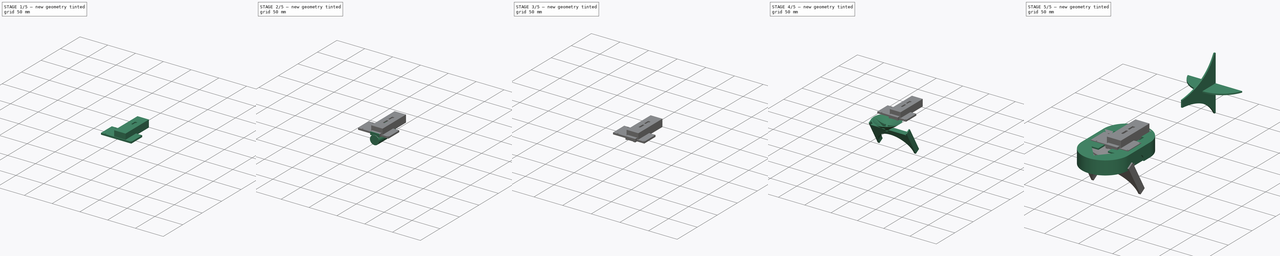
[diagram: build sequence overview — one tinted view per stage of 5, left to right]
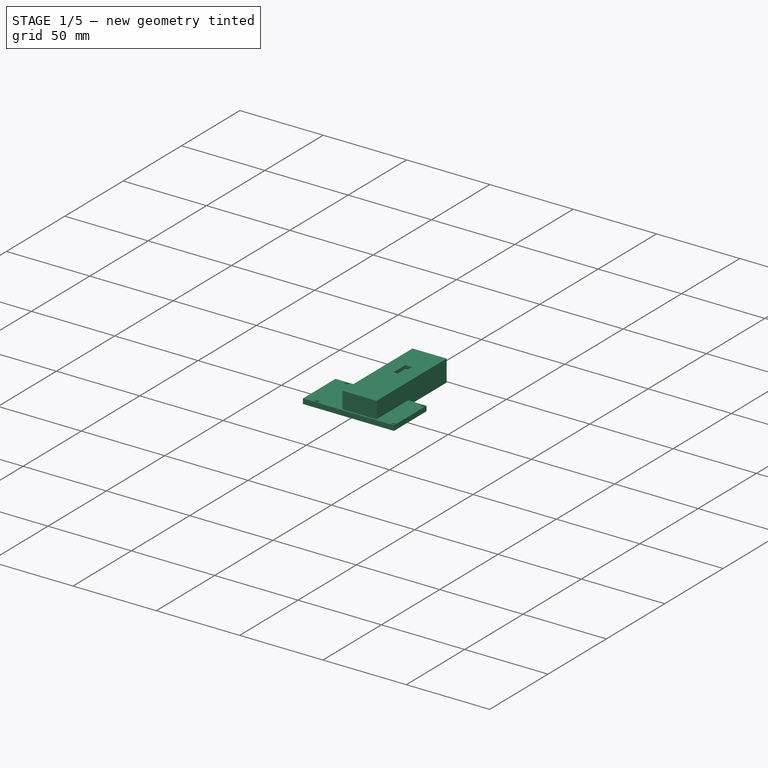
[diagram: stage 1 of 5 — iso view after this stage's code; geometry added in this stage tinted green]
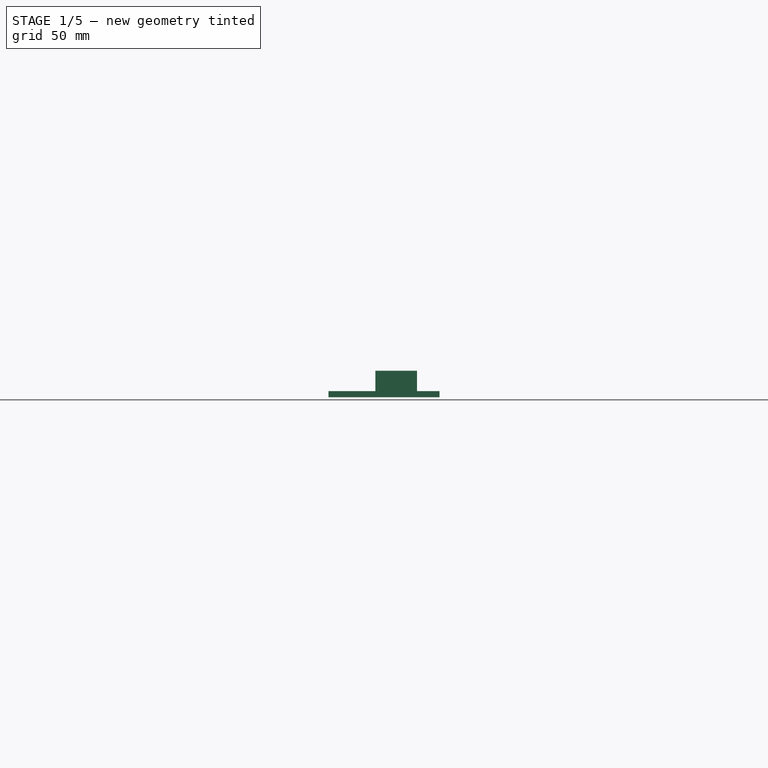
[diagram: stage 1 of 5 — front view after this stage's code; geometry added in this stage tinted green]
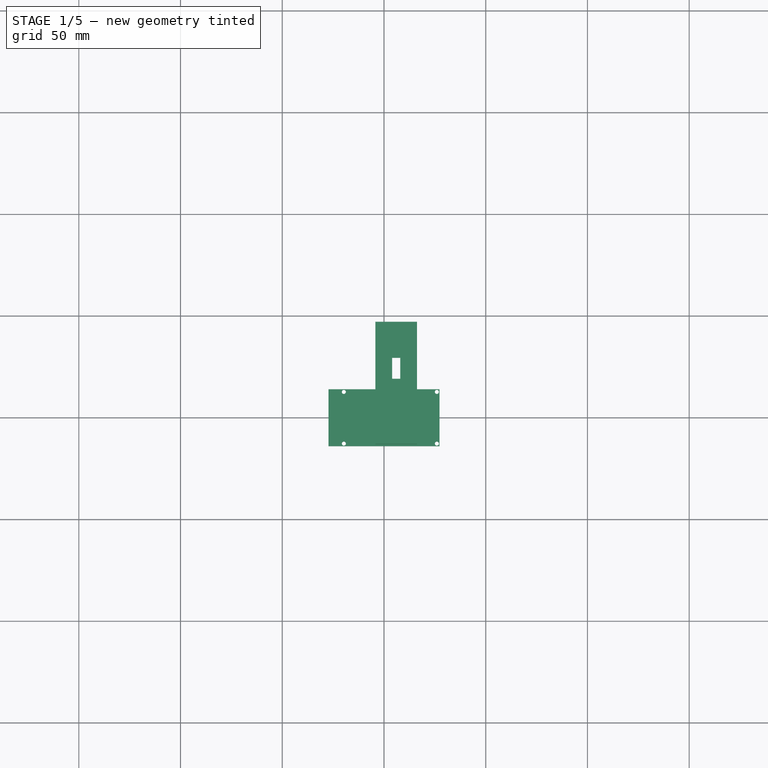
[diagram: stage 1 of 5 — top view after this stage's code; geometry added in this stage tinted green]
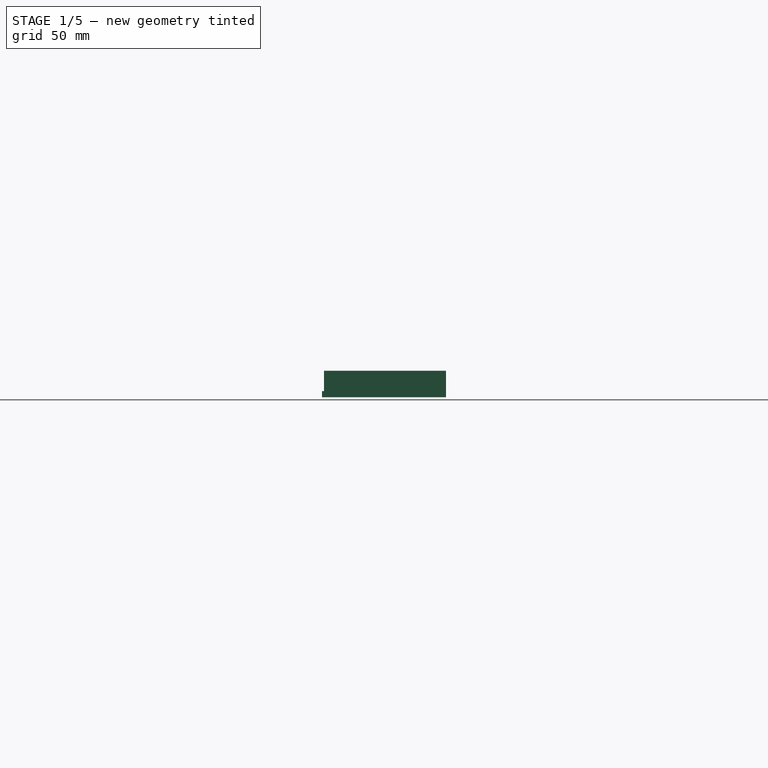
[diagram: stage 1 of 5 — right view after this stage's code; geometry added in this stage tinted green]
FCSTD DOCUMENT  (FreeCAD 0.18R16146 (Git))
Label: 06_SmartCityTrafficLight
License: All rights reserved
LicenseURL: http://en.wikipedia.org/wiki/All_rights_reserved
objects: Part::Box×29, Part::Cut×20, Sketcher::SketchObject×14, PartDesign::Body×13, PartDesign::Pad×12, Part::MultiFuse×11, Part::Cylinder×7, Part::Chamfer×3, PartDesign::Revolution×2, PartDesign::FeatureBase×1, Image::ImagePlane×1, Part::Part2DObjectPython×1, Part::Feature×1, App::DocumentObjectGroup×1
note: 128 computed .brp shape members not serialized (recipe doc carries the construction recipe); baked Part::Feature solids carry a one-line shape summary decoded from their .brp

FEATURE [Part::Box] Box017  label="Cube017"
  AttacherType = Attacher::AttachEngine3D
  Height = 11
  Length = 16.5
  Placement = pos=(-2.25,-11,0) rot=(0,0,1;0rad)
  Width = 28
FEATURE [Part::Box] Box018  label="Cube018"
  AttacherType = Attacher::AttachEngine3D
  Height = 13
  Length = 20.5
  Placement = pos=(-4.25,-13,0) rot=(0,0,1;0rad)
  Width = 32
FEATURE [Part::Box] Box020  label="Cube020"
  AttacherType = Attacher::AttachEngine3D
  Height = 11
  Length = 16.5
  Placement = pos=(-2.25,-11,0) rot=(0,0,1;0rad)
  Width = 56
FEATURE [Part::Box] Box021  label="Cube021"
  AttacherType = Attacher::AttachEngine3D
  Height = 4
  Length = 12.5
  Placement = pos=(-0.25,-9,7.5) rot=(0,0,1;0rad)
  Width = 52
FEATURE [Part::Box] Box022  label="Cube022"
  AttacherType = Attacher::AttachEngine3D
  Height = 8
  Length = 5.5
  Placement = pos=(3.25,-9,-0.5) rot=(0,0,1;0rad)
  Width = 52
FEATURE [Sketcher::SketchObject] Sketch013
  MapMode = 5
  Support = -> [XY_Plane013]
  sketch-geometry (3):
    g0: LineSegment StartX=0 StartY=20.7773 StartZ=0 EndX=-2.18082 EndY=17 EndZ=0
    g1: LineSegment StartX=-2.18082 StartY=17 StartZ=0 EndX=2.18082 EndY=17 EndZ=0
    g2: LineSegment StartX=2.18082 StartY=17 StartZ=0 EndX=0 EndY=20.7773 EndZ=0
  constraints (6):
    c: Coincident(g0,g1)
    c: Coincident(g1,g2)
    c: Coincident(g2,g0)
    c: Equal(g2,g1)
    c: Equal(g0,g1)
    c: Symmetric(g1,g0,g-2)
FEATURE [PartDesign::Pad] Pad010
  Length = 1.1
  Length2 = 100
  Profile = -> Sketch013
  Type = 0
FEATURE [Part::Chamfer] Chamfer002
  Base = -> Pad010
  Edges = 3 edges r=1: [Edge3,Edge6,Edge8]
  Placement = pos=(11.5,12.5,0.9) rot=(1,0,0;3.14159rad)
FEATURE [Part::Box] Box023  label="Cube023"
  AttacherType = Attacher::AttachEngine3D
  Height = 11
  Length = 16.5
  Placement = pos=(-2.25,-11,0) rot=(0,0,1;0rad)
  Width = 56
FEATURE [Part::Box] Box024  label="Cube024"
  AttacherType = Attacher::AttachEngine3D
  Height = 13
  Length = 20.5
  Placement = pos=(-4.25,-13,0) rot=(0,0,1;0rad)
  Width = 60
FEATURE [Part::Box] Box026  label="Cube026"
  AttacherType = Attacher::AttachEngine3D
  Height = 2
  Length = 3
  Placement = pos=(4.5,-9,11) rot=(0,0,1;0rad)
  Width = 24
FEATURE [Part::MultiFuse] Fusion011
  Shapes = -> [Box026,Box017]
FEATURE [Part::Box] Box027  label="Cube027"
  AttacherType = Attacher::AttachEngine3D
  Height = 2
  Length = 4
  Placement = pos=(4,4.25,11) rot=(0,0,1;0rad)
  Width = 25
FEATURE [Part::MultiFuse] Fusion012
  Shapes = -> [Box021,Box022,Chamfer002]
FEATURE [Part::Cut] Cut023  label="RaspLightConnInner"
  Base = -> Box020
  Tool = -> Fusion012
FEATURE [Part::MultiFuse] Fusion013
  Shapes = -> [Box027,Box023]
FEATURE [Part::Cut] Cut024  label="RaspLightConnOutter"
  Base = -> Box024
  Tool = -> Fusion013
FEATURE [Image::ImagePlane] ImagePlane
  XSize = 54.6
  YSize = 27.49
FEATURE [Sketcher::SketchObject] Sketch014
  MapMode = 5
  Support = -> [XY_Plane014]
  sketch-geometry (8):
    g0: Circle CenterX=25.996 CenterY=12.7 CenterZ=0 NormalX=0 NormalY=0 NormalZ=1 AngleXU=0 Radius=1
    g1: Circle CenterX=-19.724 CenterY=12.7 CenterZ=0 NormalX=0 NormalY=0 NormalZ=1 AngleXU=0 Radius=1
    g2: Circle CenterX=25.996 CenterY=-12.7 CenterZ=0 NormalX=0 NormalY=0 NormalZ=1 AngleXU=0 Radius=1
    g3: Circle CenterX=-19.724 CenterY=-12.7 CenterZ=0 NormalX=0 NormalY=0 NormalZ=1 AngleXU=0 Radius=1
    g4: LineSegment StartX=-27.3 StartY=13.97 StartZ=0 EndX=27.3 EndY=13.97 EndZ=0
    g5: LineSegment StartX=27.3 StartY=13.97 StartZ=0 EndX=27.3 EndY=-13.97 EndZ=0
    g6: LineSegment StartX=27.3 StartY=-13.97 StartZ=0 EndX=-27.3 EndY=-13.97 EndZ=0
    g7: LineSegment StartX=-27.3 StartY=-13.97 StartZ=0 EndX=-27.3 EndY=13.97 EndZ=0
  constraints (17):
    c: Radius(g0) = 1
    c: DistanceY(g0) = 12.7
    c: Equal(g0,g1) = 1
    c: DistanceY(g1) = 12.7
    c: DistanceX(g1,g0) = 45.72
    c: Radius(g2) = 1
    c: Equal(g2,g3) = 1
    c: Coincident(g4,g5)
    c: Coincident(g5,g6)
    c: Coincident(g6,g7)
    c: Coincident(g7,g4)
    c: Horizontal(g6)
    c: Vertical(g5)
    c: DistanceX(g4,g4) = 54.6
    c: DistanceY(g7,g7) = 27.94
    c: Symmetric(g6,g4,g-1)
    c: Symmetric(g4,g4,g-2)
FEATURE [PartDesign::Pad] Pad011
  Length = 3
  Length2 = 100
  Profile = -> Sketch014
  Type = 0
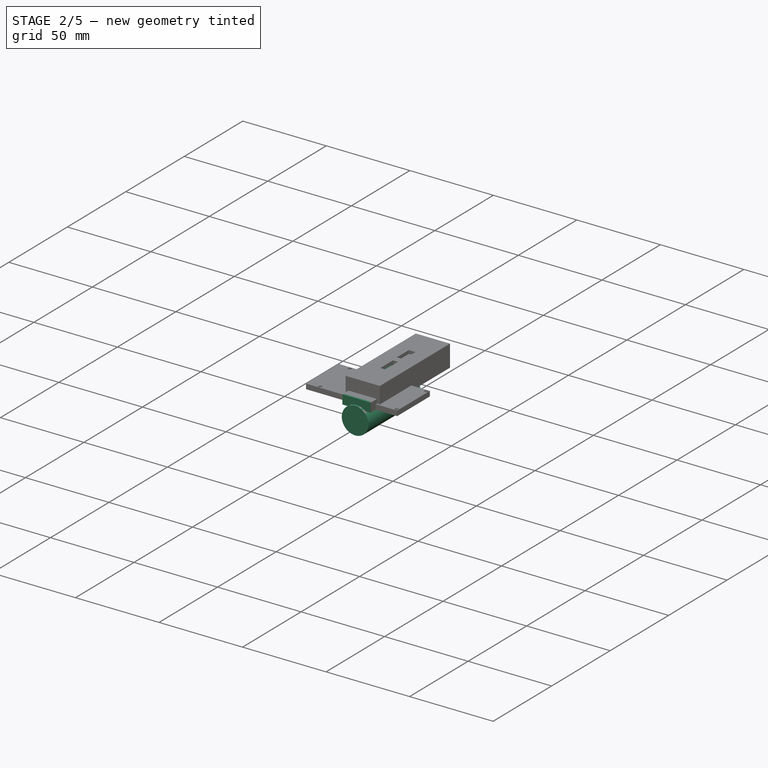
[diagram: stage 2 of 5 — iso view after this stage's code; geometry added in this stage tinted green]
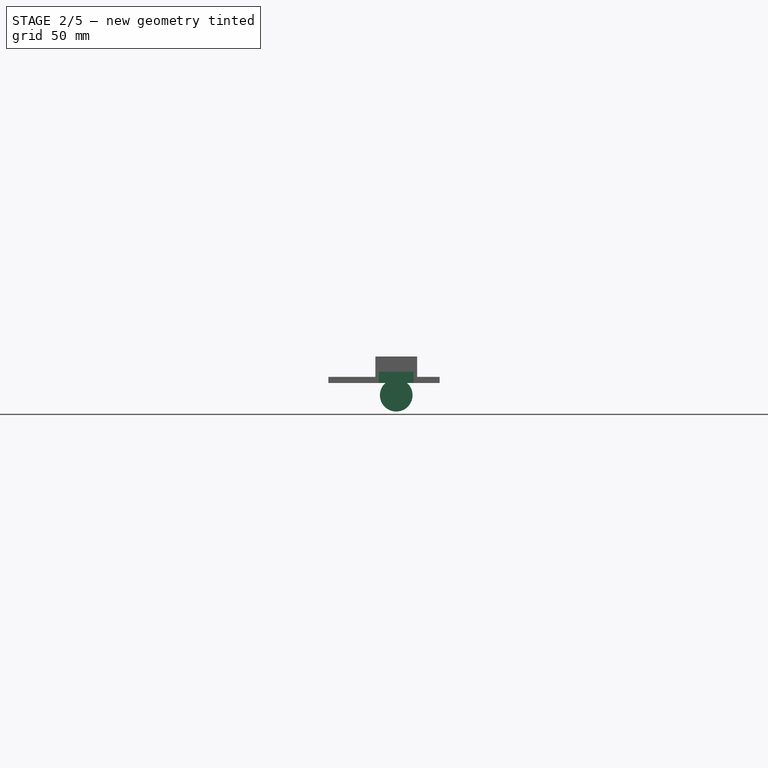
[diagram: stage 2 of 5 — front view after this stage's code; geometry added in this stage tinted green]
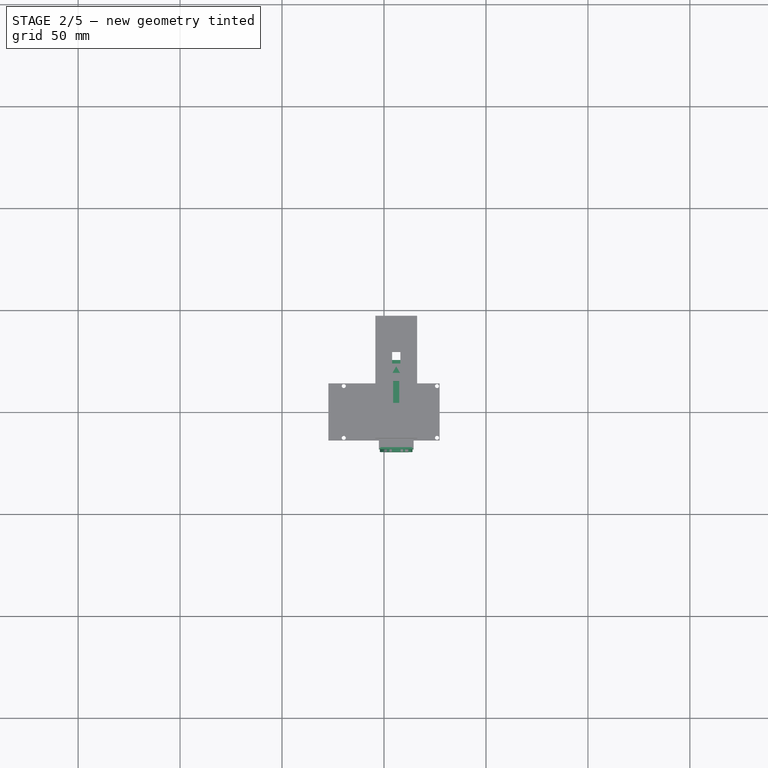
[diagram: stage 2 of 5 — top view after this stage's code; geometry added in this stage tinted green]
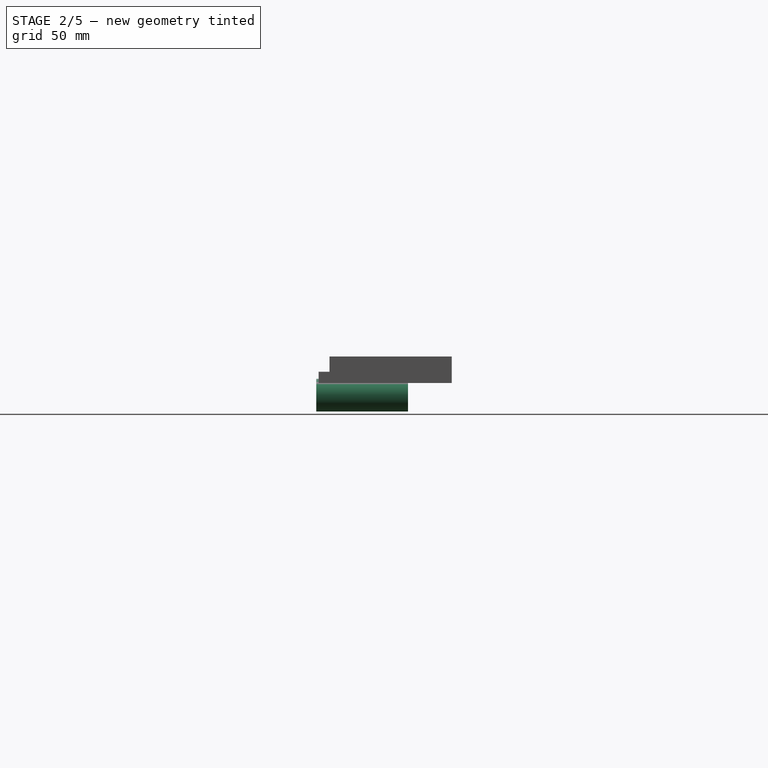
[diagram: stage 2 of 5 — right view after this stage's code; geometry added in this stage tinted green]
FEATURE [Part::Box] Box008  label="Cube008"
  AttacherType = Attacher::AttachEngine3D
  Height = 2
  Length = 15
  Placement = pos=(-1.5,-17.3,3.5) rot=(0,0,1;0rad)
  Width = 40
FEATURE [Part::Cylinder] Cylinder005
  Angle = 360
  AttacherType = Attacher::AttachEngine3D
  Height = 45
  Placement = pos=(6,-19.5,-6) rot=(-1,0,0;1.5708rad)
  Radius = 8
FEATURE [Part::Box] Box009  label="Cube009"
  AttacherType = Attacher::AttachEngine3D
  Height = 5.5
  Length = 17
  Placement = pos=(-2.5,-18.3,0) rot=(0,0,1;0rad)
  Width = 42
FEATURE [Part::Box] Box010  label="Cube010"
  AttacherType = Attacher::AttachEngine3D
  Height = 5.5
  Length = 15
  Placement = pos=(-1.5,-17.3,0) rot=(0,0,1;0rad)
  Width = 40
FEATURE [Part::Box] Box011  label="Cube011"
  AttacherType = Attacher::AttachEngine3D
  Height = 10
  Length = 5.5
  Placement = pos=(3.25,-9,0) rot=(0,0,1;0rad)
  Width = 24
FEATURE [Part::Cut] Cut011
  Base = -> Box009
  Tool = -> Box010
FEATURE [Sketcher::SketchObject] Sketch010
  MapMode = 5
  Support = -> [XY_Plane010]
  sketch-geometry (3):
    g0: LineSegment StartX=0 StartY=23.7963 StartZ=0 EndX=-3.92384 EndY=17 EndZ=0
    g1: LineSegment StartX=-3.92384 StartY=17 StartZ=0 EndX=3.92384 EndY=17 EndZ=0
    g2: LineSegment StartX=3.92384 StartY=17 StartZ=0 EndX=0 EndY=23.7963 EndZ=0
  constraints (6):
    c: Coincident(g0,g1)
    c: Coincident(g1,g2)
    c: Coincident(g2,g0)
    c: Equal(g2,g1)
    c: Equal(g0,g1)
    c: Symmetric(g1,g0,g-2)
FEATURE [PartDesign::Pad] Pad007
  Length = 1.1
  Length2 = 100
  Profile = -> Sketch010
  Type = 0
FEATURE [PartDesign::Body] Body011
  Group = -> [Sketch011,Pad008]
  Origin = -> Origin011
  Placement = pos=(6,-2,4) rot=(0,0,1;0rad)
  Tip = -> Pad008
FEATURE [Part::Chamfer] Chamfer
  Base = -> Pad007
  Edges = 3 edges r=1: [Edge3,Edge6,Edge8]
  Placement = pos=(6,-1.5,4.4) rot=(0,0,1;0rad)
FEATURE [Part::MultiFuse] Fusion005
  Shapes = -> [Cut011,Box008]
FEATURE [Part::Box] Box014  label="Cube014"
  AttacherType = Attacher::AttachEngine3D
  Height = 8
  Length = 5.5
  Placement = pos=(3.25,-9,-0.5) rot=(0,0,1;0rad)
  Width = 24
FEATURE [Part::Box] Box015  label="Cube015"
  AttacherType = Attacher::AttachEngine3D
  Height = 11
  Length = 16.5
  Placement = pos=(-2.25,-11,0) rot=(0,0,1;0rad)
  Width = 28
FEATURE [Part::Box] Box016  label="Cube016"
  AttacherType = Attacher::AttachEngine3D
  Height = 4
  Length = 12.5
  Placement = pos=(-0.25,-9,7.5) rot=(0,0,1;0rad)
  Width = 24
FEATURE [Sketcher::SketchObject] Sketch012
  MapMode = 5
  Support = -> [XY_Plane012]
  sketch-geometry (3):
    g0: LineSegment StartX=0 StartY=20.7773 StartZ=0 EndX=-2.18082 EndY=17 EndZ=0
    g1: LineSegment StartX=-2.18082 StartY=17 StartZ=0 EndX=2.18082 EndY=17 EndZ=0
    g2: LineSegment StartX=2.18082 StartY=17 StartZ=0 EndX=0 EndY=20.7773 EndZ=0
  constraints (6):
    c: Coincident(g0,g1)
    c: Coincident(g1,g2)
    c: Coincident(g2,g0)
    c: Equal(g2,g1)
    c: Equal(g0,g1)
    c: Symmetric(g1,g0,g-2)
FEATURE [PartDesign::Pad] Pad009
  Length = 1.1
  Length2 = 100
  Profile = -> Sketch012
  Type = 0
FEATURE [Part::Chamfer] Chamfer001
  Base = -> Pad009
  Edges = 3 edges r=1: [Edge3,Edge6,Edge8]
  Placement = pos=(0.5,-4.5,0.9) rot=(0,1,0;3.14159rad)
FEATURE [Part::MultiFuse] Fusion010
  Shapes = -> [Chamfer001,Box014,Box016]
FEATURE [Part::Cut] Cut021  label="TrackLightConnInner"
  Base = -> Box015
  Tool = -> Fusion010
FEATURE [Part::Cut] Cut022  label="TrackLightConnOuter"
  Base = -> Box018
  Tool = -> Fusion011
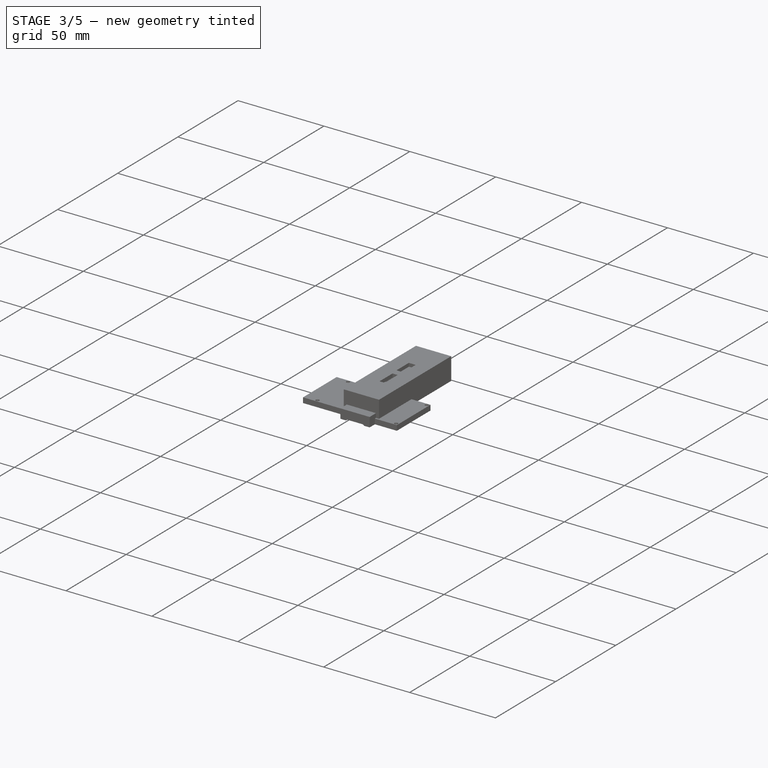
[diagram: stage 3 of 5 — iso view after this stage's code; geometry added in this stage tinted green]
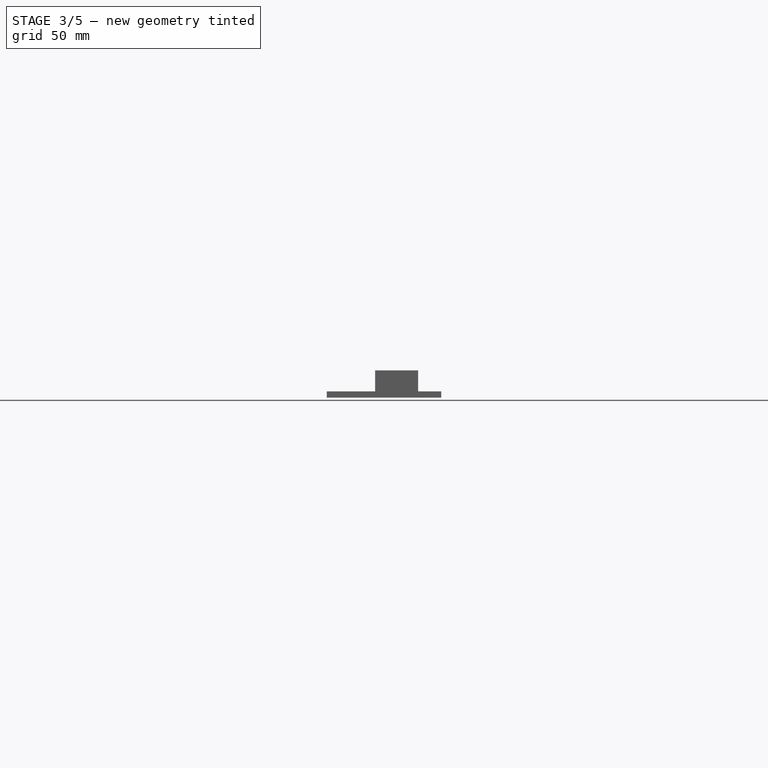
[diagram: stage 3 of 5 — front view after this stage's code; geometry added in this stage tinted green]
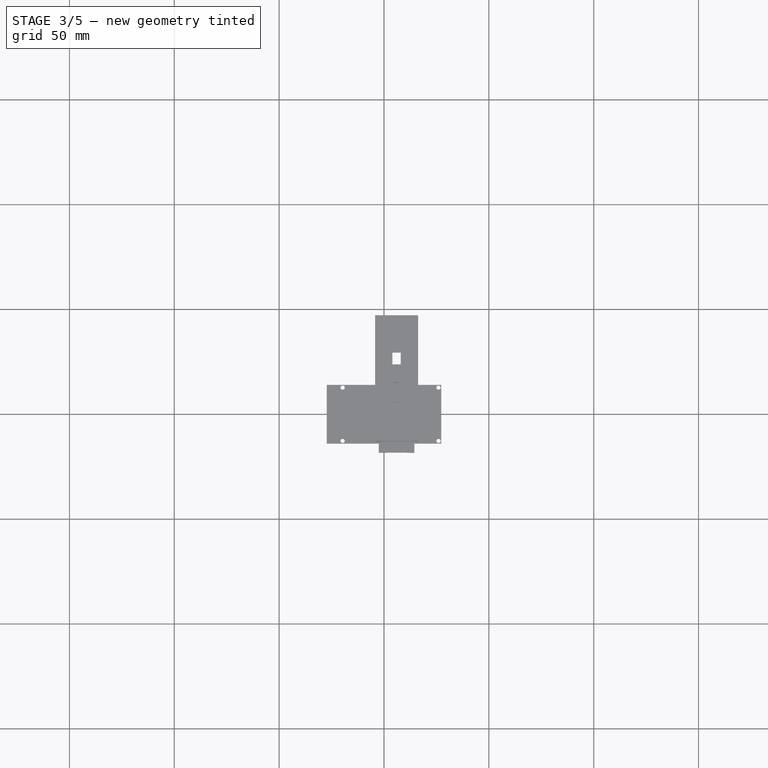
[diagram: stage 3 of 5 — top view after this stage's code; geometry added in this stage tinted green]
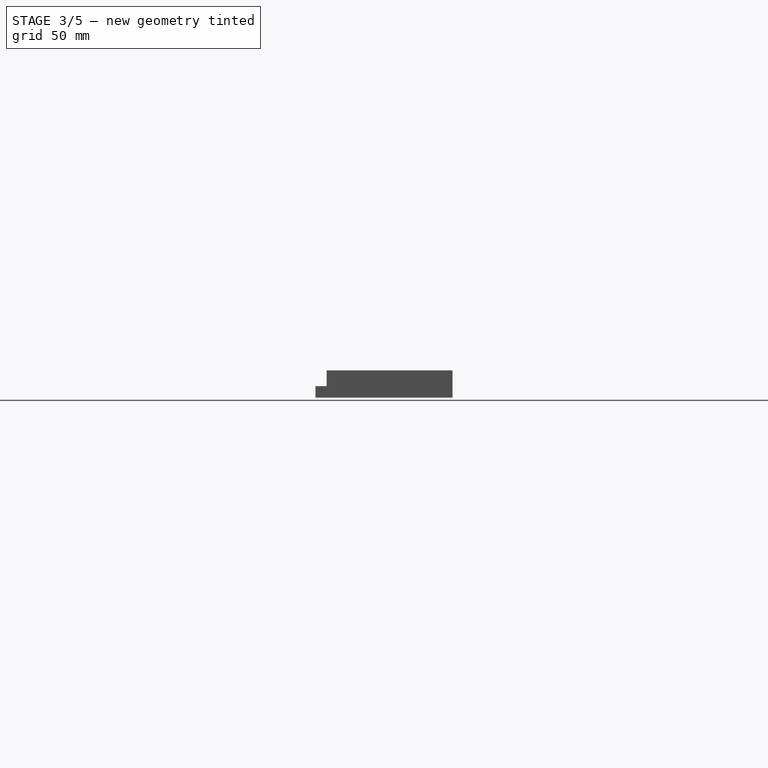
[diagram: stage 3 of 5 — right view after this stage's code; geometry added in this stage tinted green]
FEATURE [PartDesign::Body] Body009  label="LedSupportB"
  BaseFeature = -> Cut003
  Group = -> [Clone]
  Origin = -> Origin009
  Placement = pos=(0,50,0) rot=(0,0,1;0rad)
  Tip = -> Clone
FEATURE [Part::Box] Box002  label="Cube002"
  AttacherType = Attacher::AttachEngine3D
  Height = 10
  Length = 12.5
  Placement = pos=(-0.25,0.1,0) rot=(0,0,1;0rad)
  Width = 5.6
FEATURE [Part::Box] Box003  label="Cube003"
  AttacherType = Attacher::AttachEngine3D
  Height = 2
  Length = 15
  Placement = pos=(-1.5,-17.3,0) rot=(0,0,1;0rad)
  Width = 40
FEATURE [Part::Box] Box004  label="Cube004"
  AttacherType = Attacher::AttachEngine3D
  Height = 2
  Length = 12.4
  Placement = pos=(-0.2,1.5,0) rot=(0,0,1;0rad)
  Width = 7
FEATURE [Part::Box] Box005  label="Cube005"
  AttacherType = Attacher::AttachEngine3D
  Height = 2
  Length = 15
  Placement = pos=(-1.5,-17.3,0) rot=(0,0,1;0rad)
  Width = 40
FEATURE [Part::Cut] Cut007
  Base = -> Box005
  Placement = pos=(0,0,3.5) rot=(0,0,1;0rad)
  Tool = -> Box002
FEATURE [Part::Box] Box006  label="Cube006"
  AttacherType = Attacher::AttachEngine3D
  Height = 5.5
  Length = 17
  Placement = pos=(-2.5,-18.3,0) rot=(0,0,1;0rad)
  Width = 42
FEATURE [Part::Box] Box007  label="Cube007"
  AttacherType = Attacher::AttachEngine3D
  Height = 5.5
  Length = 15
  Placement = pos=(-1.5,-17.3,0) rot=(0,0,1;0rad)
  Width = 40
FEATURE [Part::Cut] Cut008
  Base = -> Box006
  Tool = -> Box007
FEATURE [Part::MultiFuse] Fusion003
  Shapes = -> [Cut007,Cut008]
FEATURE [Part::Cylinder] Cylinder004
  Angle = 360
  AttacherType = Attacher::AttachEngine3D
  Height = 45
  Placement = pos=(6,-19.5,-6) rot=(-1,0,0;1.5708rad)
  Radius = 8
FEATURE [Part::Box] Box012  label="Cube012"
  AttacherType = Attacher::AttachEngine3D
  Height = 2
  Length = 15
  Placement = pos=(-1.5,-17.3,0) rot=(0,0,1;0rad)
  Width = 40
FEATURE [Part::Box] Box013  label="Cube013"
  AttacherType = Attacher::AttachEngine3D
  Height = 2
  Length = 9
  Placement = pos=(1.5,-9,0) rot=(0,0,1;0rad)
  Width = 24
FEATURE [Part::Cut] Cut014  label="TrackLightConnBottomCover"
  Base = -> Box012
  Tool = -> Box013
FEATURE [PartDesign::Body] Body010
  Group = -> [Sketch010,Pad007]
  Origin = -> Origin010
  Placement = pos=(6,-2,4) rot=(0,0,1;0rad)
  Tip = -> Pad007
FEATURE [Sketcher::SketchObject] Sketch011
  MapMode = 5
  Support = -> [XY_Plane011]
  sketch-geometry (3):
    g0: LineSegment StartX=0 StartY=23.7963 StartZ=0 EndX=-3.92384 EndY=17 EndZ=0
    g1: LineSegment StartX=-3.92384 StartY=17 StartZ=0 EndX=3.92384 EndY=17 EndZ=0
    g2: LineSegment StartX=3.92384 StartY=17 StartZ=0 EndX=0 EndY=23.7963 EndZ=0
  constraints (6):
    c: Coincident(g0,g1)
    c: Coincident(g1,g2)
    c: Coincident(g2,g0)
    c: Equal(g2,g1)
    c: Equal(g0,g1)
    c: Symmetric(g1,g0,g-2)
FEATURE [PartDesign::Pad] Pad008
  Length = 1.1
  Length2 = 100
  Profile = -> Sketch011
  Type = 0
FEATURE [Part::Cut] Cut015  label="TrafficLightConnTopCover"
  Base = -> Fusion003
  Tool = -> Cylinder004
FEATURE [Part::MultiFuse] Fusion004
  Shapes = -> [Cylinder005,Chamfer,Box011]
FEATURE [Part::Cut] Cut016  label="TrackLightConnTopCover"
  Base = -> Fusion005
  Tool = -> Fusion004
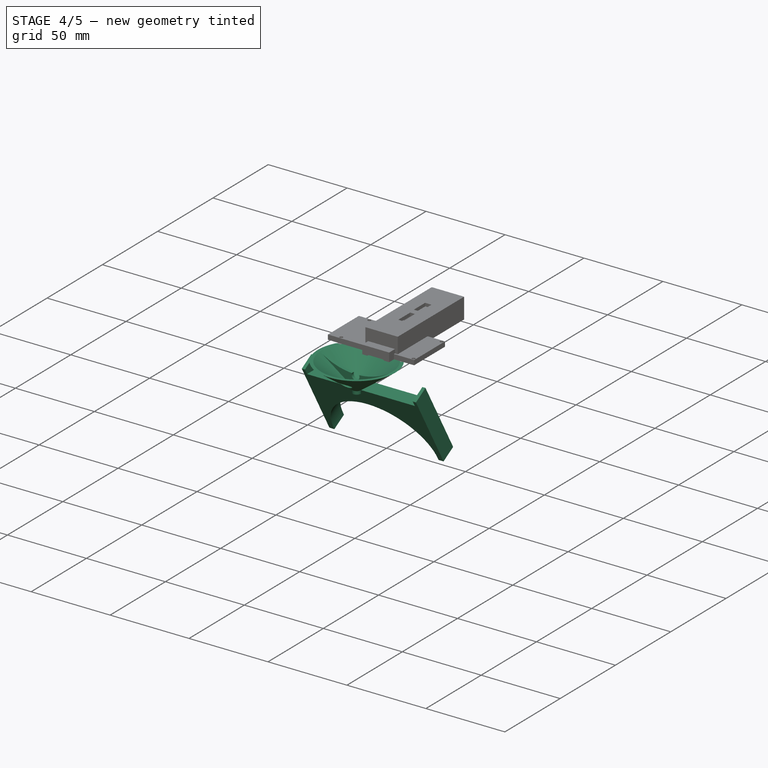
[diagram: stage 4 of 5 — iso view after this stage's code; geometry added in this stage tinted green]
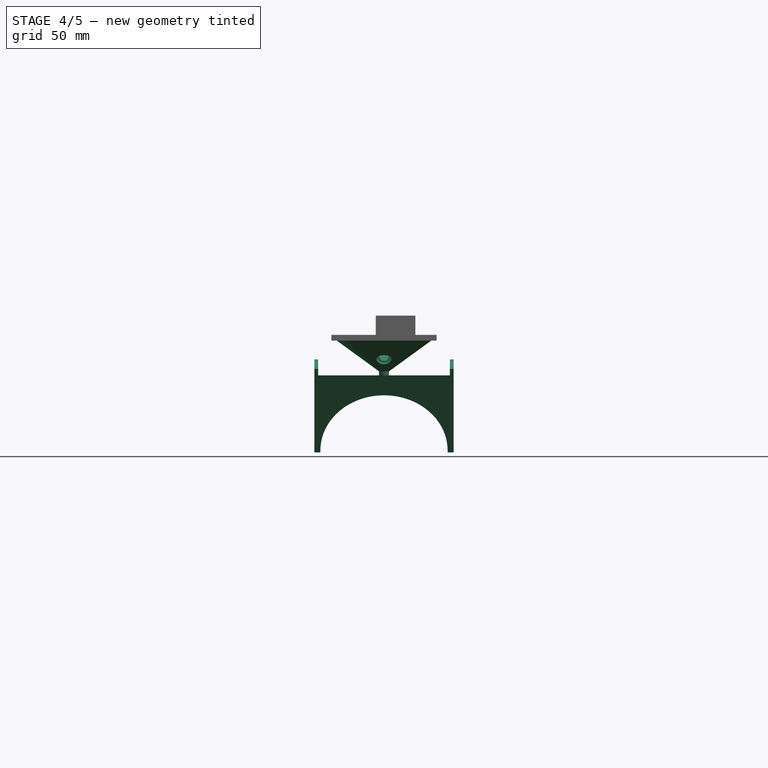
[diagram: stage 4 of 5 — front view after this stage's code; geometry added in this stage tinted green]
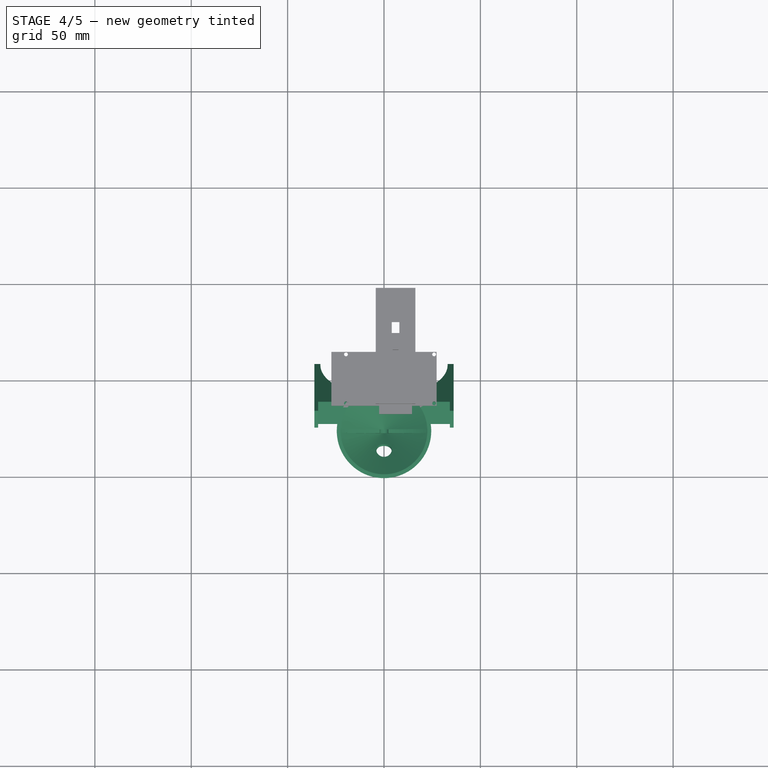
[diagram: stage 4 of 5 — top view after this stage's code; geometry added in this stage tinted green]
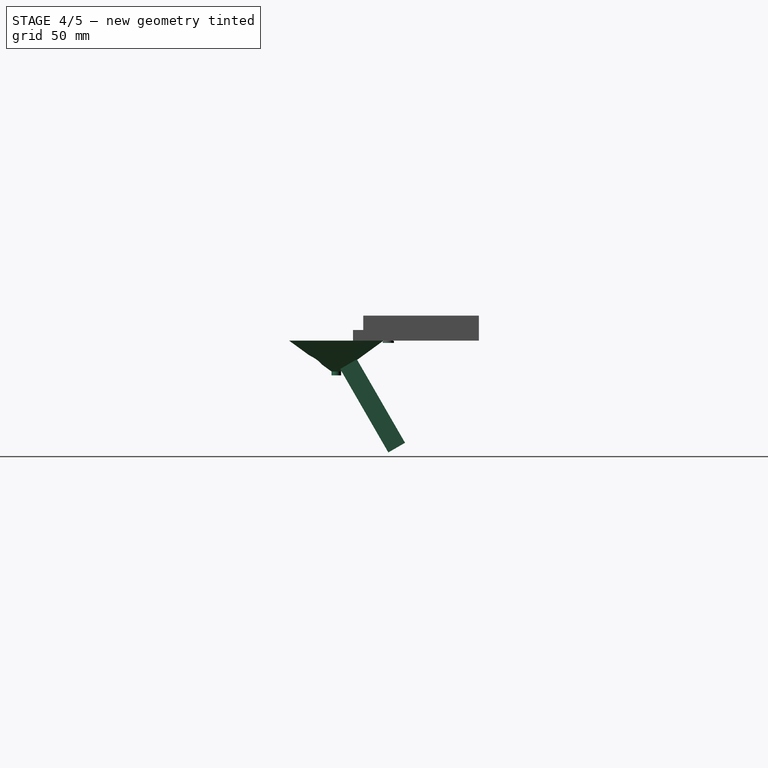
[diagram: stage 4 of 5 — right view after this stage's code; geometry added in this stage tinted green]
FEATURE [Sketcher::SketchObject] Sketch004
  MapMode = 5
  Placement = pos=(0,0,0) rot=(1,0,0;1.5708rad)
  Support = -> [XZ_Plane004]
  sketch-geometry (6):
    g0: ArcOfCircle CenterX=0 CenterY=4.8125 CenterZ=0 NormalX=0 NormalY=0 NormalZ=1 AngleXU=0 Radius=2.7 StartAngle=1.57105 EndAngle=2.77929
    g1: LineSegment StartX=-2.52472 StartY=-0.187498 StartZ=0 EndX=-2.52472 EndY=5.76946 EndZ=0
    g2: LineSegment StartX=-0.000689434 StartY=7.5125 StartZ=0 EndX=0 EndY=-1.1875 EndZ=0
    g3: LineSegment StartX=-2.92472 StartY=-0.187498 StartZ=0 EndX=-2.52472 EndY=-0.187498 EndZ=0
    g4: LineSegment StartX=-2.92472 StartY=-1.1875 StartZ=0 EndX=-2.92472 EndY=-0.187498 EndZ=0
    g5: LineSegment StartX=-2.92472 StartY=-1.1875 StartZ=0 EndX=0 EndY=-1.1875 EndZ=0
  constraints (15):
    c: DistanceX(g0,g-1) = 0
    c: Radius(g0) = 2.7
    c: Vertical(g1)
    c: Coincident(g0,g1)
    c: Coincident(g2,g0)
    c: DistanceY(g2,g2) = 8.7
    c: Coincident(g4,g3)
    c: Horizontal(g3)
    c: Vertical(g4)
    c: DistanceY(g4,g4) = 1
    c: DistanceX(g3,g3) = 0.4
    c: Coincident(g1,g3)
    c: Coincident(g5,g4)
    c: Coincident(g5,g2)
    c: Horizontal(g5)
FEATURE [PartDesign::Revolution] Revolution
  Angle = 360
  Axis = (0,2e-16,1)
  Base = (0,0,0)
  Placement = pos=(0,0,0) rot=(1,0,0;1.5708rad)
  Profile = -> Sketch004
  ReferenceAxis = -> Sketch004 [V_Axis]
FEATURE [Sketcher::SketchObject] Sketch008
  MapMode = 5
  Placement = pos=(0,0,0) rot=(0.57735,0.57735,0.57735;2.0944rad)
  Support = -> [YZ_Plane007]
  sketch-geometry (7):
    g0: LineSegment StartX=0 StartY=2 StartZ=0 EndX=0 EndY=0 EndZ=0
    g1: LineSegment StartX=0 StartY=0 StartZ=0 EndX=2.5 EndY=0 EndZ=0
    g2: LineSegment StartX=2.5 StartY=0 StartZ=0 EndX=2.5 EndY=2 EndZ=0
    g3: LineSegment StartX=2.5 StartY=2 StartZ=0 EndX=24.5 EndY=18 EndZ=0
    g4: LineSegment StartX=24.5 StartY=18 StartZ=0 EndX=22.5 EndY=18 EndZ=0
    g5: LineSegment StartX=22.5 StartY=18 StartZ=0 EndX=0.5 EndY=2 EndZ=0
    g6: LineSegment StartX=0.5 StartY=2 StartZ=0 EndX=0 EndY=2 EndZ=0
  constraints (15):
    c: Vertical(g0)
    c: Coincident(g0,g1)
    c: Horizontal(g1)
    c: Coincident(g1,g2)
    c: Coincident(g2,g3)
    c: Coincident(g3,g4)
    c: Horizontal(g4)
    c: Coincident(g4,g5)
    c: Coincident(g5,g6)
    c: Coincident(g6,g0)
    c: DistanceX(g1,g1) = 2.5
    c: DistanceY(g0,g0) = 2
    c: DistanceX(g-2,g4) = 22.5
    c: DistanceX(g4,g4) = 2
    c: DistanceY(g4) = 18
FEATURE [PartDesign::Revolution] Revolution001
  Angle = 360
  Axis = (-2e-16,3e-16,1)
  Base = (0,0,0)
  Placement = pos=(0,0,0) rot=(0.57735,0.57735,0.57735;2.0944rad)
  Profile = -> Sketch008
  ReferenceAxis = -> Sketch008 [V_Axis]
  Reversed = true
FEATURE [PartDesign::Body] Body007
  Group = -> [Sketch008,Revolution001]
  Origin = -> Origin007
  Tip = -> Revolution001
FEATURE [Part::Cylinder] Cylinder
  Angle = 360
  AttacherType = Attacher::AttachEngine3D
  Height = 10
  Placement = pos=(-5e-15,-6,10) rot=(0.57735,0.57735,0.57735;4.18879rad)
  Radius = 2.5
FEATURE [Sketcher::SketchObject] Sketch009
  MapMode = 5
  Placement = pos=(0,0,0) rot=(1,0,0;1.5708rad)
  Support = -> [XZ_Plane008]
  sketch-geometry (5):
    g0: LineSegment StartX=22.5241 StartY=18 StartZ=0 EndX=0.5 EndY=2 EndZ=0
    g1: LineSegment StartX=0.5 StartY=2 StartZ=0 EndX=0 EndY=2 EndZ=0
    g2: LineSegment StartX=-22.5241 StartY=18 StartZ=0 EndX=-0.5 EndY=2 EndZ=0
    g3: LineSegment StartX=-0.5 StartY=2 StartZ=0 EndX=0 EndY=2 EndZ=0
    g4: ArcOfCircle CenterX=-1.53e-14 CenterY=50.2225 CenterZ=0 NormalX=0 NormalY=0 NormalZ=1 AngleXU=0 Radius=39.3145 StartAngle=4.10232 EndAngle=5.32245
  constraints (6):
    c: Coincident(g0,g1)
    c: Coincident(g2,g3)
    c: Coincident(g4,g2)
    c: Coincident(g0,g4)
    c: DistanceY(g0) = 18
    c: Symmetric(g0,g2,g-2)
FEATURE [PartDesign::Pad] Pad006
  Length = 2
  Length2 = 100
  Midplane = true
  Placement = pos=(0,0,0) rot=(1,0,0;1.5708rad)
  Profile = -> Sketch009
  Type = 0
FEATURE [PartDesign::Body] Body008
  Group = -> [Sketch009,Pad006]
  Origin = -> Origin008
  Tip = -> Pad006
FEATURE [Part::Cut] Cut002  label="asad"
  Base = -> Body008
  Tool = -> Cylinder
FEATURE [Part::MultiFuse] Fusion002  label="121"
  Shapes = -> [Body007,Cut002]
FEATURE [Part::Cylinder] Cylinder001
  Angle = 360
  AttacherType = Attacher::AttachEngine3D
  Height = 10
  Placement = pos=(0,-13.435,5.53553) rot=(-1,0,0;0.785398rad)
  Radius = 4
FEATURE [Part::Cut] Cut003  label="63_LedSupport"
  Base = -> Fusion002
  Placement = pos=(0,-27,-18) rot=(0,0,1;0rad)
  Tool = -> Cylinder001
FEATURE [PartDesign::FeatureBase] Clone
  BaseFeature = -> Cut003
  Placement = pos=(0,-27,-18) rot=(0,0,1;0rad)
FEATURE [Part::Cut] Cut006  label="TrafficLightConnBottomCover"
  Base = -> Box003
  Tool = -> Box004
FEATURE [PartDesign::Body] Body012
  Group = -> [Sketch014,Pad011]
  Origin = -> Origin012
  Tip = -> Pad011
FEATURE [Part::Box] Box028  label="Cube028"
  AttacherType = Attacher::AttachEngine3D
  Height = 50
  Length = 68.3
  Placement = pos=(-34.15,0,-58) rot=(1,0,0;0.523599rad)
  Width = 10
FEATURE [Part::Box] Box029  label="Cube029"
  AttacherType = Attacher::AttachEngine3D
  Height = 50
  Length = 72.3
  Placement = pos=(-36.15,0,-58) rot=(1,0,0;0.523599rad)
  Width = 10
FEATURE [Part::Part2DObjectPython] Rectangle  # Draft 2D object (typed FeaturePython)
  ChamferSize = 0
  Columns = 1
  FilletRadius = 0
  Height = 148
  Length = 163
  MakeFace = true
  Placement = pos=(-78,-75,-18) rot=(0,0,1;0rad)
  Rows = 1
FEATURE [Part::Feature] CutVolume
  shape: bbox 77.3 x 50 x 41 mm, 6 faces (baked)
FEATURE [Part::Cut] CutPlane
  Base = -> Box028
  Tool = -> CutVolume
FEATURE [Part::Box] Box030  label="Cube030"
  AttacherType = Attacher::AttachEngine3D
  Height = 50
  Length = 68.3
  Placement = pos=(-34.15,0,-58) rot=(1,0,0;0.523599rad)
  Width = 10
FEATURE [Part::Cut] Cut025
  Base = -> Box029
  Tool = -> Box030
FEATURE [Part::Cylinder] Cylinder006
  Angle = 360
  AttacherType = Attacher::AttachEngine3D
  Height = 50
  Placement = pos=(0,-6.67691,-60.4352) rot=(-1,0,0;1.0472rad)
  Radius = 33
FEATURE [Part::Cut] Cut026
  Base = -> CutPlane
  Tool = -> Cylinder006
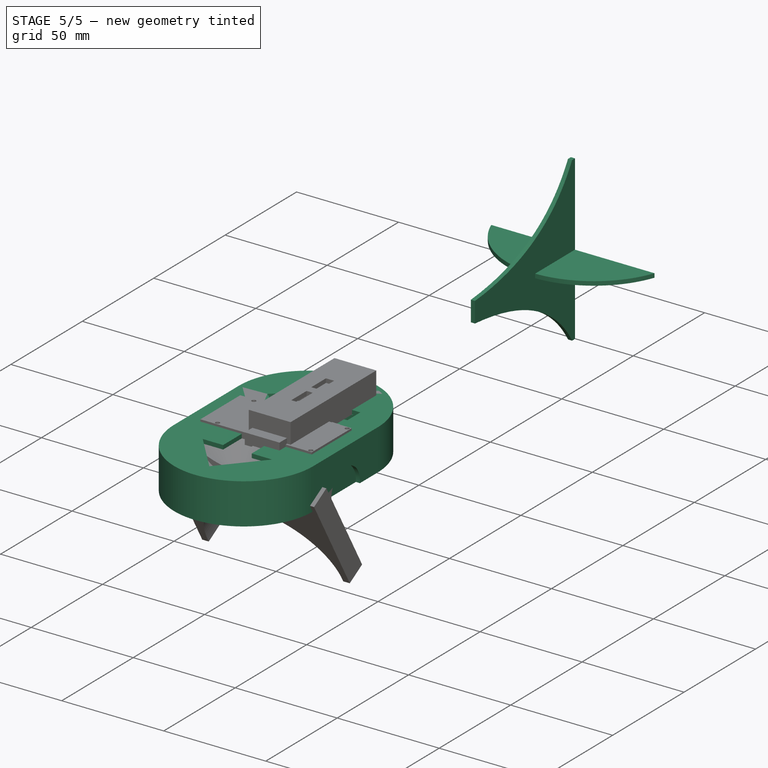
[diagram: stage 5 of 5 — iso view after this stage's code; geometry added in this stage tinted green]
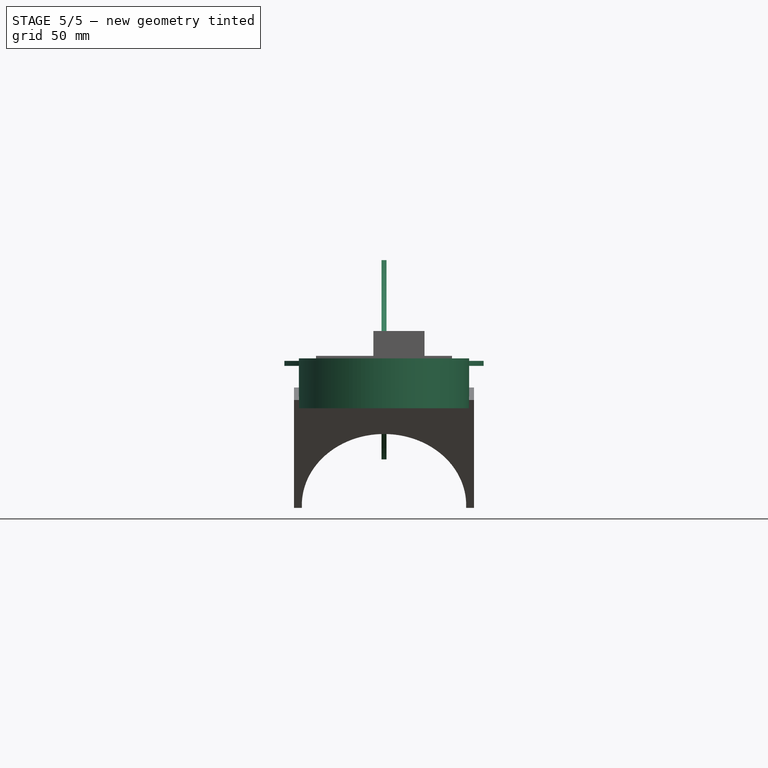
[diagram: stage 5 of 5 — front view after this stage's code; geometry added in this stage tinted green]
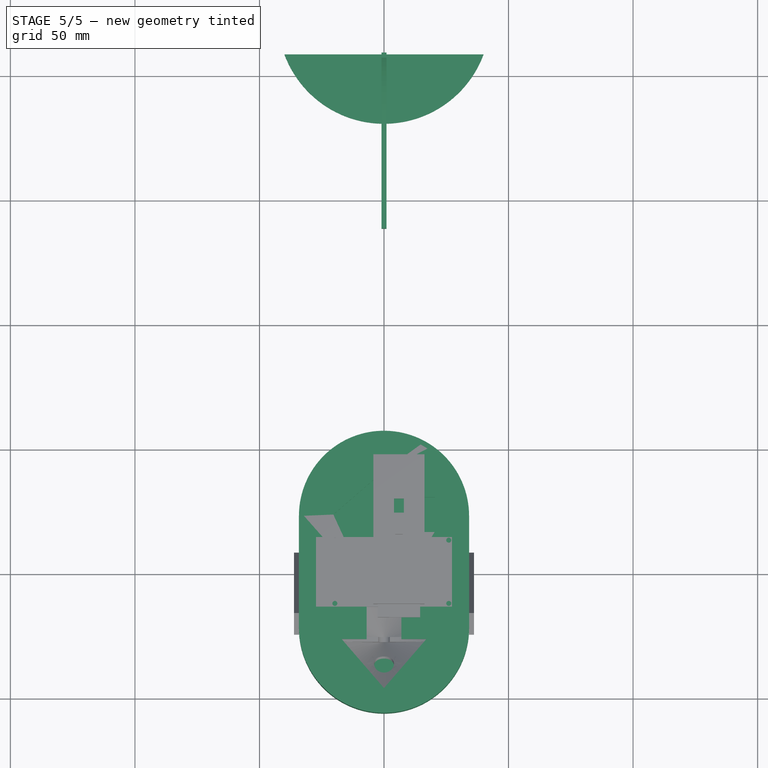
[diagram: stage 5 of 5 — top view after this stage's code; geometry added in this stage tinted green]
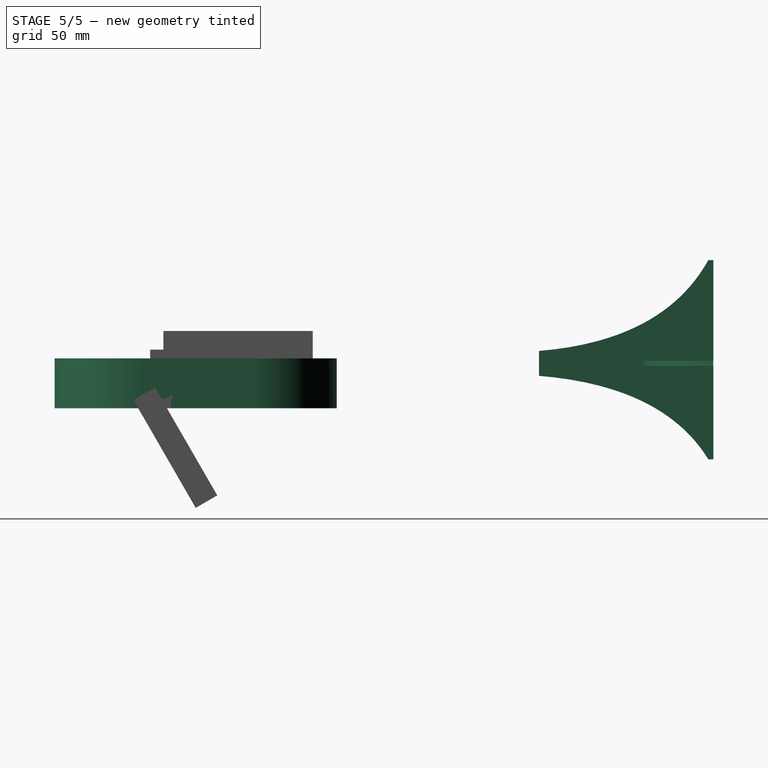
[diagram: stage 5 of 5 — right view after this stage's code; geometry added in this stage tinted green]
FEATURE [Sketcher::SketchObject] Sketch
  MapMode = 5
  Support = -> [XY_Plane]
  sketch-geometry (8):
    g0: ArcOfCircle CenterX=1e-16 CenterY=22.5 CenterZ=0 NormalX=0 NormalY=0 NormalZ=1 AngleXU=0 Radius=34.1543 StartAngle=0 EndAngle=3.14159
    g1: ArcOfCircle CenterX=-4.5e-15 CenterY=-22.5 CenterZ=0 NormalX=0 NormalY=0 NormalZ=1 AngleXU=0 Radius=34.1543 StartAngle=3.14159 EndAngle=6.28319
    g2: LineSegment StartX=-34.1543 StartY=22.5 StartZ=0 EndX=-34.1543 EndY=-22.5 EndZ=0
    g3: LineSegment StartX=34.1543 StartY=22.5 StartZ=0 EndX=34.1543 EndY=-22.5 EndZ=0
    g4: ArcOfCircle CenterX=-1.2e-15 CenterY=22.5 CenterZ=0 NormalX=0 NormalY=0 NormalZ=1 AngleXU=0 Radius=32.1543 StartAngle=0 EndAngle=3.14159
    g5: ArcOfCircle CenterX=-1.5e-15 CenterY=-22.5 CenterZ=0 NormalX=0 NormalY=0 NormalZ=1 AngleXU=0 Radius=32.1543 StartAngle=3.14159 EndAngle=6.28319
    g6: LineSegment StartX=-32.1543 StartY=22.5 StartZ=0 EndX=-32.1543 EndY=-22.5 EndZ=0
    g7: LineSegment StartX=32.1543 StartY=22.5 StartZ=0 EndX=32.1543 EndY=-22.5 EndZ=0
  constraints (15):
    c: Tangent(g0,g3) = 1.5708
    c: Tangent(g0,g2) = -1.5708
    c: Tangent(g2,g1) = -1.5708
    c: Tangent(g3,g1) = 1.5708
    c: Symmetric(g0,g0,g-2)
    c: Symmetric(g0,g1,g-1)
    c: DistanceY(g3,g3) = 45
    c: Tangent(g4,g7) = 1.5708
    c: Tangent(g4,g6) = -1.5708
    c: Tangent(g6,g5) = -1.5708
    c: Tangent(g7,g5) = 1.5708
    c: Symmetric(g4,g4,g-2)
    c: Symmetric(g4,g5,g-1)
    c: DistanceY(g7,g7) = 45
    c: Distance(g4,g0) = 2
FEATURE [PartDesign::Pad] Pad
  Length = 20
  Length2 = 100
  Profile = -> Sketch
  Type = 0
FEATURE [PartDesign::Body] Body
  Group = -> [Sketch,Pad]
  Origin = -> Origin
  Placement = pos=(0,0,-18) rot=(0,0,1;0rad)
  Tip = -> Pad
FEATURE [Sketcher::SketchObject] Sketch001
  MapMode = 5
  Support = -> [XY_Plane001]
  expr: Constraints[6] = Sketch.Constraints[13]
  sketch-geometry (18):
    g0: ArcOfCircle CenterX=2.7e-15 CenterY=22.5 CenterZ=0 NormalX=0 NormalY=0 NormalZ=1 AngleXU=0 Radius=32.1662 StartAngle=0 EndAngle=3.14159
    g1: ArcOfCircle CenterX=-5.4e-15 CenterY=-22.5 CenterZ=0 NormalX=0 NormalY=0 NormalZ=1 AngleXU=0 Radius=32.1662 StartAngle=3.14159 EndAngle=6.28319
    g2: LineSegment StartX=-32.1662 StartY=22.5 StartZ=0 EndX=-32.1662 EndY=-22.5 EndZ=0
    g3: LineSegment StartX=32.1662 StartY=22.5 StartZ=0 EndX=32.1662 EndY=-22.5 EndZ=0
    g4: LineSegment StartX=-17 StartY=27 StartZ=0 EndX=0 EndY=46.6723 EndZ=0
    g5: LineSegment StartX=0 StartY=46.6723 StartZ=0 EndX=17 EndY=27 EndZ=0
    g6: LineSegment StartX=17 StartY=27 StartZ=0 EndX=7 EndY=27 EndZ=0
    g7: LineSegment StartX=7 StartY=27 StartZ=0 EndX=7 EndY=6 EndZ=0
    g8: LineSegment StartX=7 StartY=6 StartZ=0 EndX=-7 EndY=6 EndZ=0
    g9: LineSegment StartX=-7 StartY=6 StartZ=0 EndX=-7 EndY=27 EndZ=0
    g10: LineSegment StartX=-7 StartY=27 StartZ=0 EndX=-17 EndY=27 EndZ=0
    g11: LineSegment StartX=-20.3373 StartY=-16 StartZ=0 EndX=-20.3373 EndY=-30 EndZ=0
    g12: LineSegment StartX=-20.3373 StartY=-30 StartZ=0 EndX=0.662684 EndY=-30 EndZ=0
    g13: LineSegment StartX=0.662684 StartY=-30 StartZ=0 EndX=0.662684 EndY=-40 EndZ=0
    g14: LineSegment StartX=0.662684 StartY=-40 StartZ=0 EndX=20.335 EndY=-23 EndZ=0
    g15: LineSegment StartX=20.335 StartY=-23 StartZ=0 EndX=0.662684 EndY=-6 EndZ=0
    g16: LineSegment StartX=0.662684 StartY=-6 StartZ=0 EndX=0.662684 EndY=-16 EndZ=0
    g17: LineSegment StartX=0.662684 StartY=-16 StartZ=0 EndX=-20.3373 EndY=-16 EndZ=0
  constraints (49):
    c: Tangent(g0,g3) = 1.5708
    c: Tangent(g0,g2) = -1.5708
    c: Tangent(g2,g1) = -1.5708
    c: Tangent(g3,g1) = 1.5708
    c: Symmetric(g0,g0,g-2)
    c: Symmetric(g0,g1,g-1)
    c: DistanceY(g3,g3) = 45
    c: Coincident(g4,g5)
    c: Coincident(g5,g6)
    c: Coincident(g6,g7)
    c: Vertical(g7)
    c: Coincident(g7,g8)
    c: Coincident(g8,g9)
    c: Vertical(g9)
    c: Coincident(g9,g10)
    c: Coincident(g4,g10)
    c: Symmetric(g9,g6,g-2)
    c: Equal(g9,g7)
    c: Equal(g4,g5)
    c: Horizontal(g10)
    c: Equal(g10,g6)
    c: Horizontal(g6)
    c: DistanceX(g8,g8) = 14
    c: DistanceY(g9,g9) = 21
    c: DistanceX(g10,g10) = 10
    c: Distance(g4) = 26
    c: Coincident(g11,g12)
    c: Coincident(g12,g13)
    c: Coincident(g13,g14)
    c: Coincident(g14,g15)
    c: Coincident(g15,g16)
    c: Vertical(g16)
    c: Coincident(g16,g17)
    c: DistanceX(g17,g17) = 21
    c: Coincident(g11,g17)
    c: Parallel(g12,g17)
    c: Horizontal(g17)
    c: DistanceY(g11,g11) = 14
    c: Vertical(g11)
    c: DistanceY(g16,g16) = 10
    c: Equal(g16,g13)
    c: Equal(g12,g17)
    c: Equal(g16,g13)
    c: Vertical(g13)
    c: Equal(g15,g14)
    c: Distance(g15) = 26
    c: Distance(g-1,g8) = 6
    c: DistanceY(g-1,g15) = -6
    c: Distance(g14,g-2) = 20.335
FEATURE [PartDesign::Pad] Pad001
  Length = 2
  Length2 = 100
  Profile = -> Sketch001
  Type = 0
FEATURE [PartDesign::Body] Body001
  Group = -> [Sketch001,Pad001]
  Origin = -> Origin001
  Tip = -> Pad001
FEATURE [Sketcher::SketchObject] Sketch002
  MapMode = 5
  Support = -> [XY_Plane002]
  expr: Constraints[10] = Sketch.Constraints[13]
  sketch-geometry (8):
    g0: ArcOfCircle CenterX=1e-15 CenterY=22.5 CenterZ=0 NormalX=0 NormalY=0 NormalZ=1 AngleXU=0 Radius=30.1544 StartAngle=0 EndAngle=3.14159
    g1: ArcOfCircle CenterX=-4e-15 CenterY=-22.5 CenterZ=0 NormalX=0 NormalY=0 NormalZ=1 AngleXU=0 Radius=30.1543 StartAngle=3.14159 EndAngle=6.28319
    g2: ArcOfCircle CenterX=-1.2e-15 CenterY=22.5 CenterZ=0 NormalX=0 NormalY=0 NormalZ=1 AngleXU=0 Radius=32.1544 StartAngle=0 EndAngle=3.14159
    g3: ArcOfCircle CenterX=-1.1e-15 CenterY=-22.5 CenterZ=0 NormalX=0 NormalY=0 NormalZ=1 AngleXU=0 Radius=32.1544 StartAngle=3.14159 EndAngle=6.28319
    g4: LineSegment StartX=-32.1544 StartY=22.5 StartZ=0 EndX=-32.1544 EndY=-22.5 EndZ=0
    g5: LineSegment StartX=32.1544 StartY=22.5 StartZ=0 EndX=32.1544 EndY=-22.5 EndZ=0
    g6: LineSegment StartX=-30.1544 StartY=22.5 StartZ=0 EndX=-30.1544 EndY=-22.5 EndZ=0
    g7: LineSegment StartX=30.1544 StartY=22.5 StartZ=0 EndX=30.1543 EndY=-22.5 EndZ=0
  constraints (15):
    c: Coincident(g6,g1) = -1.5708
    c: Coincident(g7,g1) = 1.5708
    c: Symmetric(g0,g0,g-2)
    c: Symmetric(g0,g1,g-1)
    c: Tangent(g2,g5) = 1.5708
    c: Tangent(g2,g4) = -1.5708
    c: Tangent(g4,g3) = -1.5708
    c: Tangent(g5,g3) = 1.5708
    c: Symmetric(g2,g2,g-2)
    c: Symmetric(g2,g3,g-1)
    c: DistanceY(g5,g5) = 45
    c: DistanceX(g2) = -32.1544
    c: Distance(g2,g0) = 2
    c: Coincident(g0,g7)
    c: Coincident(g0,g6)
FEATURE [PartDesign::Pad] Pad002
  Length = 18
  Length2 = 100
  Profile = -> Sketch002
  Type = 0
FEATURE [PartDesign::Body] Body002
  Group = -> [Sketch002,Pad002]
  Origin = -> Origin002
  Placement = pos=(0,0,-18) rot=(0,0,1;0rad)
  Tip = -> Pad002
FEATURE [Sketcher::SketchObject] Sketch003
  MapMode = 5
  Support = -> [XY_Plane003]
  expr: Constraints[6] = Sketch.Constraints[6]
  sketch-geometry (6):
    g0: ArcOfCircle CenterX=1.2e-15 CenterY=22.5 CenterZ=0 NormalX=0 NormalY=0 NormalZ=1 AngleXU=0 Radius=30.1544 StartAngle=0 EndAngle=3.14159
    g1: ArcOfCircle CenterX=-2.8e-15 CenterY=-22.5 CenterZ=0 NormalX=0 NormalY=0 NormalZ=1 AngleXU=0 Radius=30.1543 StartAngle=3.14159 EndAngle=6.28319
    g2: LineSegment StartX=-30.1544 StartY=22.5 StartZ=0 EndX=-30.1544 EndY=-22.5 EndZ=0
    g3: LineSegment StartX=30.1544 StartY=22.5 StartZ=0 EndX=30.1543 EndY=-22.5 EndZ=0
    g4: Circle CenterX=0 CenterY=27 CenterZ=0 NormalX=0 NormalY=0 NormalZ=1 AngleXU=0 Radius=2.25
    g5: Circle CenterX=0 CenterY=-23 CenterZ=0 NormalX=0 NormalY=0 NormalZ=1 AngleXU=0 Radius=2.25
  constraints (13):
    c: Tangent(g0,g3) = 1.5708
    c: Tangent(g0,g2) = -1.5708
    c: Tangent(g2,g1) = -1.5708
    c: Tangent(g3,g1) = 1.5708
    c: Symmetric(g0,g0,g-2)
    c: Symmetric(g0,g1,g-1)
    c: DistanceY(g3,g3) = 45
    c: Radius(g4) = 2.25
    c: Radius(g5) = 2.25
    c: Vertical(g4,g5)
    c: DistanceX(g4) = 0
    c: DistanceY(g4) = 27
    c: DistanceY(g5) = -23
FEATURE [PartDesign::Pad] Pad003
  Length = 2
  Length2 = 100
  Profile = -> Sketch003
  Type = 0
FEATURE [PartDesign::Body] Body003
  Group = -> [Sketch003,Pad003]
  Origin = -> Origin003
  Placement = pos=(0,0,-18) rot=(0,0,1;0rad)
  Tip = -> Pad003
FEATURE [Part::MultiFuse] Fusion
  Shapes = -> [Body,Body001]
FEATURE [Part::MultiFuse] Fusion001
  Shapes = -> [Body002,Body003]
FEATURE [PartDesign::Body] Body004  label="LED"
  Group = -> [Sketch004,Revolution]
  Origin = -> Origin004
  Placement = pos=(0,-27,-17.8) rot=(0,0,1;0rad)
  Tip = -> Revolution
FEATURE [Sketcher::SketchObject] Sketch006
  MapMode = 5
  Placement = pos=(0,0,0) rot=(0.57735,0.57735,0.57735;2.0944rad)
  Support = -> [YZ_Plane005]
  sketch-geometry (15):
    g0: Circle [constr] CenterX=137.843 CenterY=-5 CenterZ=0 NormalX=0 NormalY=0 NormalZ=1 AngleXU=0 Radius=20
    g1: Circle [constr] CenterX=187.806 CenterY=-9.13637 CenterZ=0 NormalX=0 NormalY=0 NormalZ=1 AngleXU=0 Radius=20
    g2: Circle [constr] CenterX=205.843 CenterY=-38.556 CenterZ=0 NormalX=0 NormalY=0 NormalZ=1 AngleXU=0 Radius=20
    g3: BSplineCurve PolesCount=3 KnotsCount=2 Degree=2 IsPeriodic=0
    g4: GeomPoint [constr] X=137.843 Y=-5 Z=0
    g5: GeomPoint [constr] X=205.801 Y=-50 Z=0
    g6: LineSegment StartX=137.843 StartY=-5 StartZ=0 EndX=137.843 EndY=5 EndZ=0
    g7: LineSegment StartX=205.843 StartY=-38.556 StartZ=0 EndX=207.843 EndY=-38.556 EndZ=0
    g8: LineSegment StartX=207.843 StartY=41.444 StartZ=0 EndX=207.843 EndY=1 EndZ=0
    g9: LineSegment StartX=205.801 StartY=41.444 StartZ=0 EndX=207.843 EndY=41.444 EndZ=0
    g10: BSplineCurve PolesCount=3 KnotsCount=2 Degree=2 IsPeriodic=0
    g11: LineSegment StartX=192.843 StartY=1 StartZ=0 EndX=207.843 EndY=1 EndZ=0
    g12: LineSegment StartX=207.843 StartY=-1 StartZ=0 EndX=192.843 EndY=-1 EndZ=0
    g13: LineSegment StartX=192.843 StartY=-1 StartZ=0 EndX=192.843 EndY=1 EndZ=0
    g14: LineSegment StartX=207.843 StartY=-1 StartZ=0 EndX=207.843 EndY=-38.556 EndZ=0
  constraints (28):
    c: Radius(g0) = 20
    c: Equal(g0,g1)
    c: Equal(g0,g2)
    c: InternalAlignment(g0,g3)
    c: InternalAlignment(g1,g3)
    c: InternalAlignment(g2,g3)
    c: InternalAlignment(g4,g3)
    c: Vertical(g6)
    c: DistanceY(g6,g6) = 10
    c: Coincident(g7,g3)
    c: Horizontal(g7)
    c: DistanceX(g7,g7) = 2
    c: Vertical(g8)
    c: Coincident(g9,g10)
    c: Coincident(g9,g8)
    c: Horizontal(g9)
    c: Coincident(g10,g6)
    c: Coincident(g7,g14)
    c: Symmetric(g6,g3,g-1)
    c: Coincident(g12,g13)
    c: Vertical(g13)
    c: Distance(g13) = 2
    c: Symmetric(g12,g11,g-1)
    c: Coincident(g8,g11)
    c: Coincident(g14,g12)
    c: Tangent(g8,g14)
    c: Distance(g12) = 15
    c: Distance(g6,g8) = 70
FEATURE [PartDesign::Pad] Pad004
  Length = 2
  Length2 = 100
  Midplane = true
  Placement = pos=(0,0,0) rot=(0.57735,0.57735,0.57735;2.0944rad)
  Profile = -> Sketch006
  Type = 0
FEATURE [PartDesign::Body] Body005  label="61_TrafficLightPole"
  Group = -> [Sketch006,Pad004]
  Origin = -> Origin005
  Placement = pos=(0,-77,-8) rot=(0,0,1;0rad)
  Tip = -> Pad004
FEATURE [Sketcher::SketchObject] Sketch007
  MapMode = 5
  Support = -> [XY_Plane006]
  sketch-geometry (6):
    g0: LineSegment StartX=-40 StartY=207.802 StartZ=0 EndX=40 EndY=207.802 EndZ=0
    g1: ArcOfCircle CenterX=-4.9e-15 CenterY=222.592 CenterZ=0 NormalX=0 NormalY=0 NormalZ=1 AngleXU=0 Radius=42.6465 StartAngle=3.49574 EndAngle=4.68894
    g2: LineSegment StartX=-1 StartY=192.757 StartZ=0 EndX=1.0002 EndY=192.757 EndZ=0
    g3: LineSegment StartX=1.0002 StartY=192.757 StartZ=0 EndX=1.0002 EndY=179.957 EndZ=0
    g4: LineSegment StartX=-1 StartY=179.957 StartZ=0 EndX=-1 EndY=192.757 EndZ=0
    g5: ArcOfCircle CenterX=-4.9e-15 CenterY=222.592 CenterZ=0 NormalX=0 NormalY=0 NormalZ=1 AngleXU=0 Radius=42.6465 StartAngle=4.73584 EndAngle=5.92904
  constraints (13):
    c: Symmetric(g0,g0,g-2)
    c: Coincident(g5,g0)
    c: Coincident(g0,g1)
    c: Coincident(g2,g3)
    c: Coincident(g4,g2)
    c: Horizontal(g2)
    c: Vertical(g3)
    c: Vertical(g4)
    c: Equal(g1,g5)
    c: Coincident(g1,g5)
    c: Coincident(g3,g5)
    c: Coincident(g4,g1)
    c: Distance(g3) = 12.8
FEATURE [PartDesign::Pad] Pad005
  Length = 2
  Length2 = 100
  Midplane = true
  Profile = -> Sketch007
  Type = 0
FEATURE [PartDesign::Body] Body006  label="62_TrafficLightPoleBase"
  Group = -> [Sketch007,Pad005]
  Origin = -> Origin006
  Placement = pos=(0,-77,-8) rot=(0,0,1;0rad)
  Tip = -> Pad005
FEATURE [Part::Box] Box  label="Cube"
  AttacherType = Attacher::AttachEngine3D
  Height = 10
  Length = 2
  Placement = pos=(-1,-58,-13) rot=(0,0,1;0rad)
  Width = 10
FEATURE [Part::Box] Box001  label="Cube001"
  AttacherType = Attacher::AttachEngine3D
  Height = 10
  Length = 2
  Placement = pos=(-1,-63,-13) rot=(0,0,1;0rad)
  Width = 10
FEATURE [Part::Cut] Cut  label="asasda"
  Base = -> Fusion001
  Placement = pos=(0,0,0) rot=(0,0,1;3.14159rad)
  Tool = -> Box
FEATURE [Part::Cut] Cut001  label="asas"
  Base = -> Fusion
  Placement = pos=(0,0,0) rot=(0,0,1;3.14159rad)
  Tool = -> Box001
FEATURE [Part::Cylinder] Cylinder002
  Angle = 360
  AttacherType = Attacher::AttachEngine3D
  Height = 100
  Placement = pos=(-48,0,-17) rot=(0,1,0;1.5708rad)
  Radius = 10
FEATURE [Part::Cut] Cut004  label="64_TrafficLightCaseTop"
  Base = -> Cut001
  Tool = -> Cylinder002
FEATURE [Part::Cylinder] Cylinder003
  Angle = 360
  AttacherType = Attacher::AttachEngine3D
  Height = 10
  Placement = pos=(0,43,-22) rot=(0,0,1;0rad)
  Radius = 2
FEATURE [Part::Cut] Cut005  label="65_TrafficLightCaseBottom"
  Base = -> Cut
  Tool = -> Cylinder003
FEATURE [Part::MultiFuse] Fusion014  label="66_TrafficLightSupport"
  Shapes = -> [Cut025,Cut026]
FEATURE [App::DocumentObjectGroup] Group  label="Resources"
  Group = -> [Body009,Cut006,Cut014,Body010,Body011,Cut015,Cut016,XY_Plane012,XY_Plane013,Cut021,Cut022,Cut023,Cut024,ImagePlane,Body012,Rectangle,Body004]
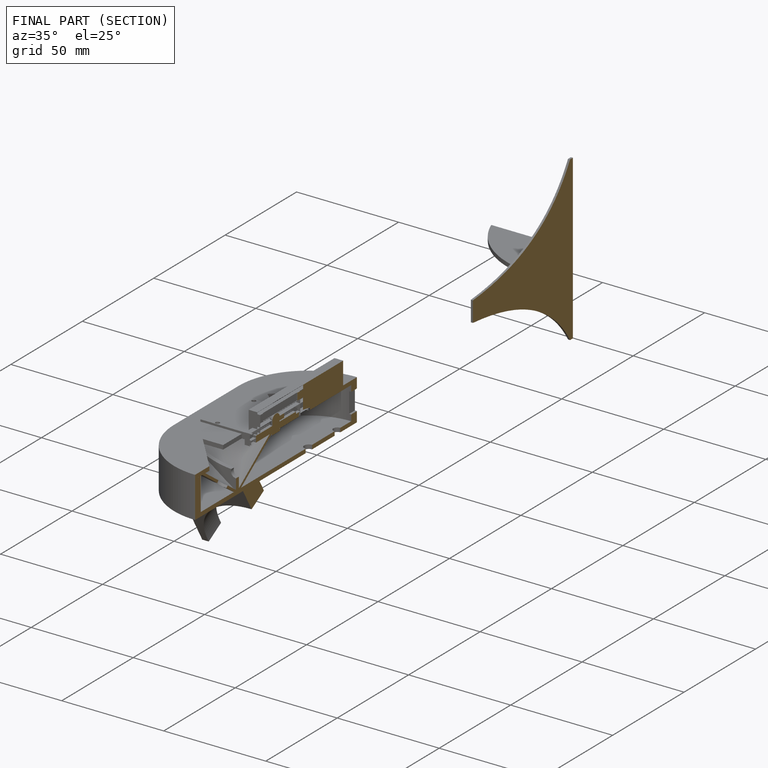
[diagram: finished part — half-section view (interior)]
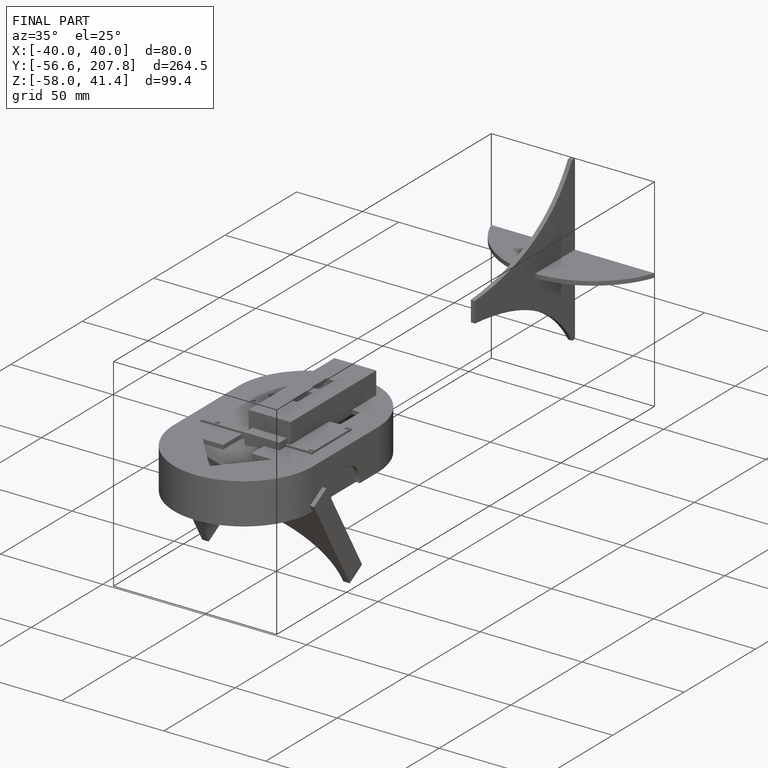
[diagram: finished part — iso view with bounding-box wireframe]
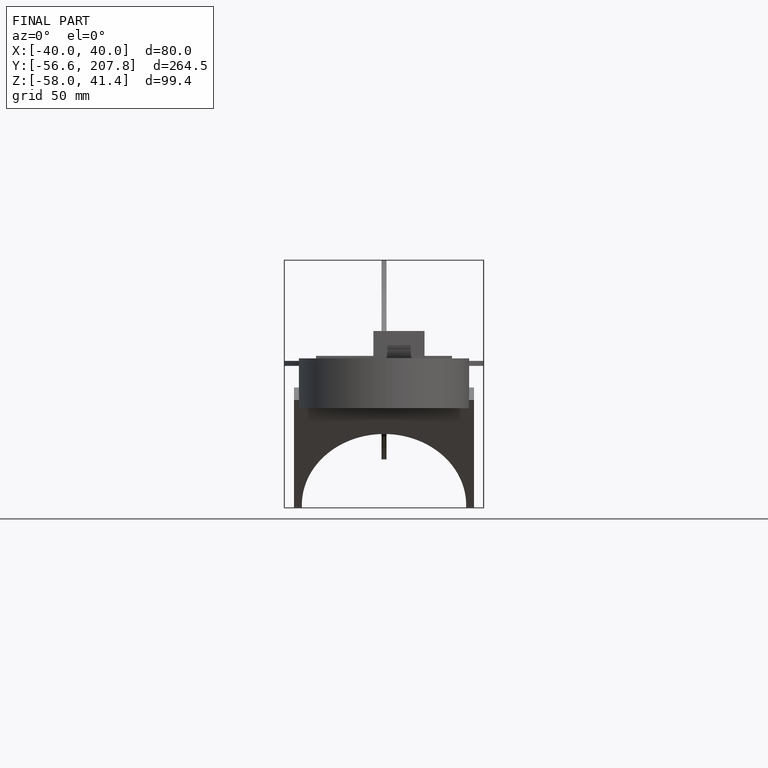
[diagram: finished part — front view with bounding-box wireframe]
